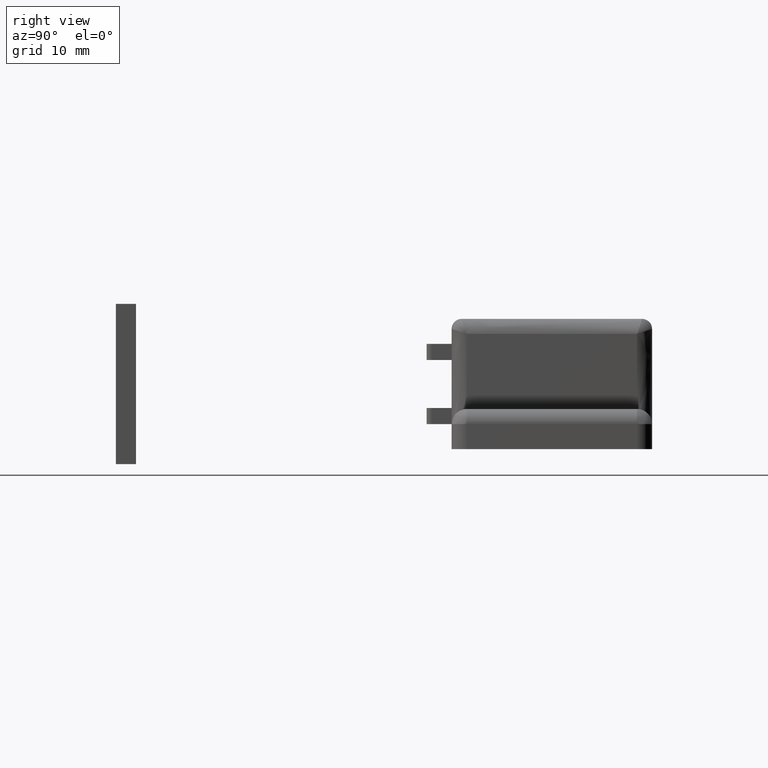
[diagram: clean part render]
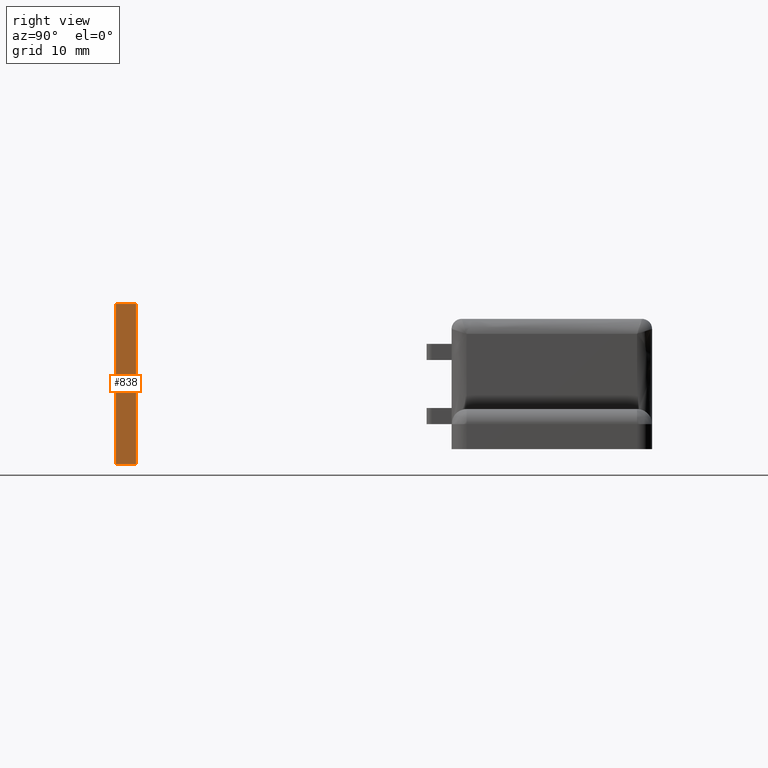
[diagram: same view with one face highlighted and labeled with its STEP entity id]
A machine part, right view. The second image highlights one B-rep face of the part: STEP entity #838.
In plain terms, the highlighted face is a freeform B-spline surface patch.
Its self-contained STEP definition (entity closure, byte-faithful):
#733=CARTESIAN_POINT('',(14.500000000000000,-51.500000000000000,14.500014999999999));
#734=VERTEX_POINT('',#733);
#740=CARTESIAN_POINT('',(14.500000000000000,-51.500000000000000,-1.499985000000000));
#741=VERTEX_POINT('',#740);
#742=CARTESIAN_POINT('',(14.500000000000000,-51.500000000000000,14.500014999999999));
#743=CARTESIAN_POINT('',(14.500000000000000,-51.500000000000000,-1.499985000000000));
#744=QUASI_UNIFORM_CURVE('',1,(#742,#743),.UNSPECIFIED.,.F.,.U.);
#745=EDGE_CURVE('',#734,#741,#744,.T.);
#775=CARTESIAN_POINT('',(14.500000000000000,-53.500000000000000,-1.499985000000000));
#776=VERTEX_POINT('',#775);
#782=CARTESIAN_POINT('',(14.500000000000000,-53.500000000000000,14.500014999999999));
#783=VERTEX_POINT('',#782);
#784=CARTESIAN_POINT('',(14.500000000000000,-53.500000000000000,14.500014999999999));
#785=CARTESIAN_POINT('',(14.500000000000000,-53.500000000000000,-1.499985000000000));
#786=QUASI_UNIFORM_CURVE('',1,(#784,#785),.UNSPECIFIED.,.F.,.U.);
#787=EDGE_CURVE('',#783,#776,#786,.T.);
#809=CARTESIAN_POINT('',(14.500000000000000,-53.500000000000000,-1.499985000000000));
#810=CARTESIAN_POINT('',(14.500000000000000,-51.500000000000000,-1.499985000000000));
#811=QUASI_UNIFORM_CURVE('',1,(#809,#810),.UNSPECIFIED.,.F.,.U.);
#812=EDGE_CURVE('',#776,#741,#811,.T.);
#823=CARTESIAN_POINT('',(14.500000000000000,-53.599899996123611,15.299214968988890));
#824=CARTESIAN_POINT('',(14.500000000000000,-53.599899996123611,-2.299185398142338));
#825=CARTESIAN_POINT('',(14.500000000000000,-51.400099950232210,15.299214968988890));
#826=CARTESIAN_POINT('',(14.500000000000000,-51.400099950232210,-2.299185398142338));
#827=B_SPLINE_SURFACE_WITH_KNOTS('',1,1,((#823,#825),(#824,#826)),.UNSPECIFIED.,.F.,.F.,.U.,(2,2),(2,2),(0.0,17.598400367131230),(0.0,2.199800045891401),.UNSPECIFIED.);
#828=ORIENTED_EDGE('',*,*,#745,.F.);
#829=CARTESIAN_POINT('',(14.500000000000000,-53.500000000000000,14.500014999999999));
#830=CARTESIAN_POINT('',(14.500000000000000,-51.500000000000000,14.500014999999999));
#831=QUASI_UNIFORM_CURVE('',1,(#829,#830),.UNSPECIFIED.,.F.,.U.);
#832=EDGE_CURVE('',#783,#734,#831,.T.);
#833=ORIENTED_EDGE('',*,*,#832,.F.);
#834=ORIENTED_EDGE('',*,*,#787,.T.);
#835=ORIENTED_EDGE('',*,*,#812,.T.);
#836=EDGE_LOOP('',(#828,#833,#834,#835));
#837=FACE_OUTER_BOUND('',#836,.T.);
#838=ADVANCED_FACE('',(#837),#827,.T.);